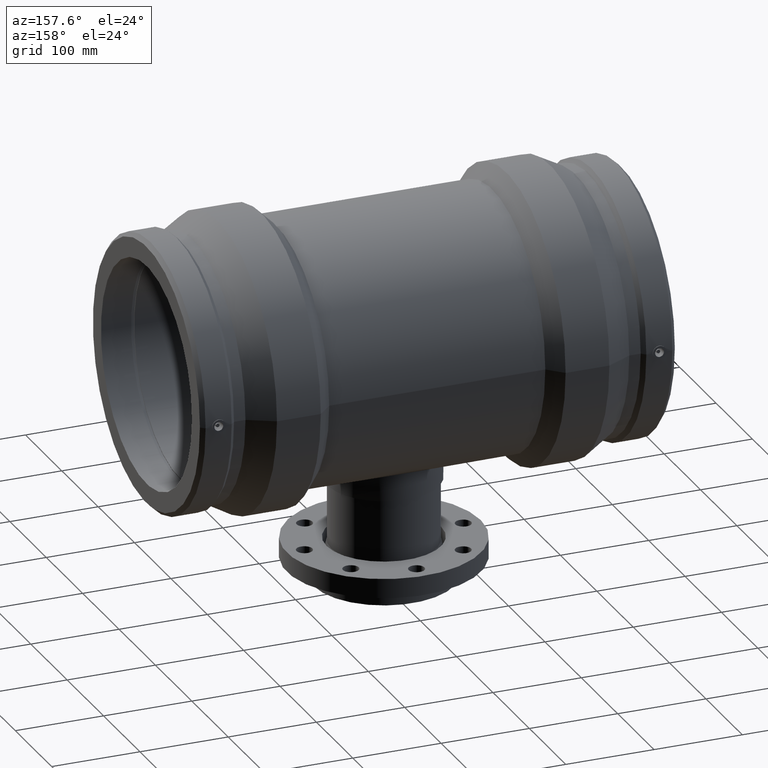
[diagram: clean part render]
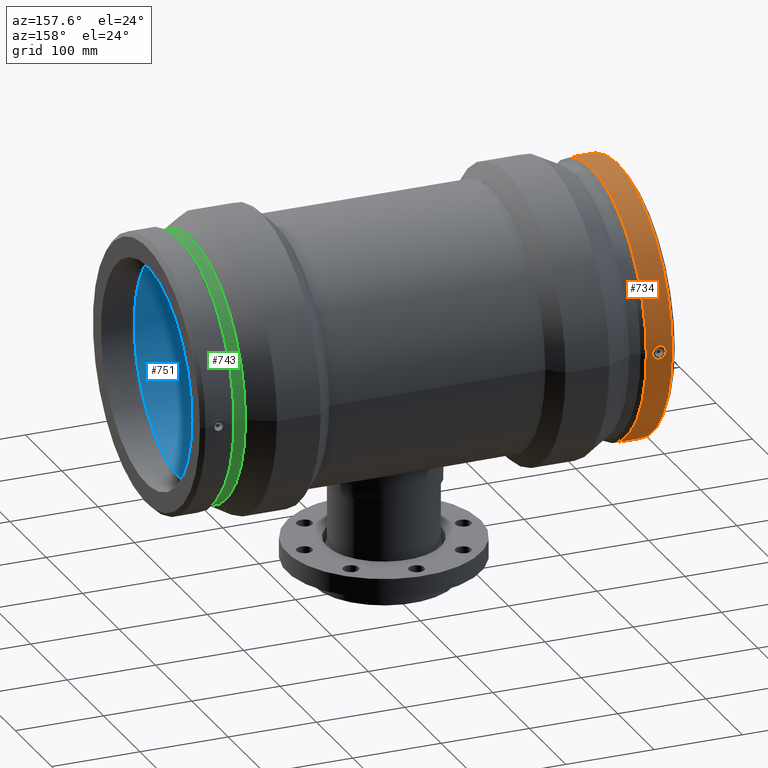
[diagram: same view with three faces highlighted in distinct colors, each labeled with its STEP entity id]
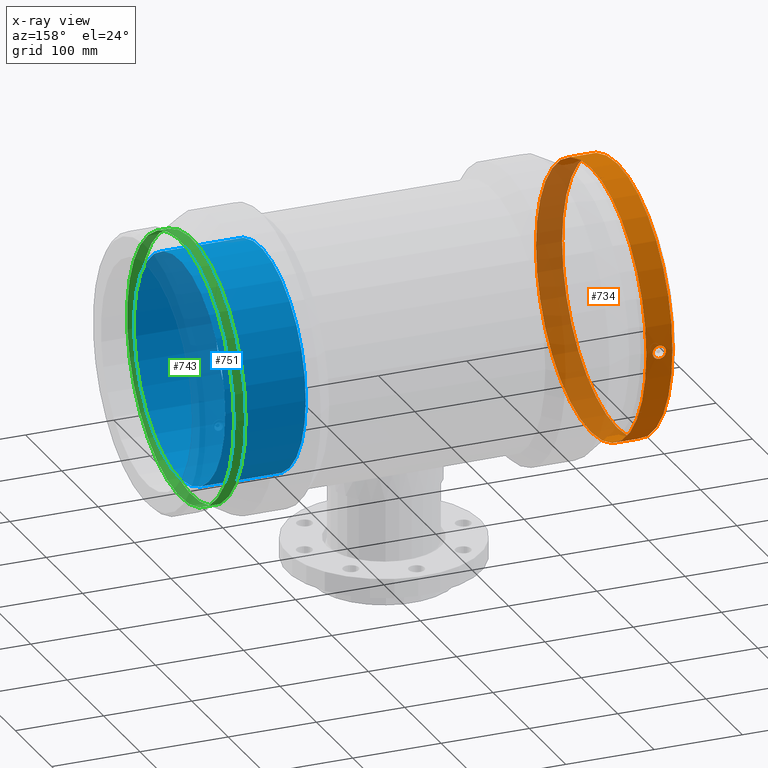
[diagram: x-ray of the same camera — body ghosted, the three highlighted faces saturated]
A machine part, auxiliary view with three faces highlighted in distinct colors.
The next image is the same camera in x-ray (body ghosted, the three faces saturated) — at least one of them is partly hidden behind the body in this view.
Their STEP definitions:

[orange] entity #734 — the highlighted cylindrical surface (bore or boss wall) has radius 151.59 mm, axis along (1, 0, 0).
#93=FACE_BOUND('',#360,.T.);
#94=FACE_BOUND('',#361,.T.);
#161=CIRCLE('',#835,151.59);
#162=CIRCLE('',#837,151.59);
#204=CYLINDRICAL_SURFACE('',#836,151.59);
#250=FACE_OUTER_BOUND('',#359,.T.);
#359=EDGE_LOOP('',(#645));
#360=EDGE_LOOP('',(#646));
#361=EDGE_LOOP('',(#647));
#418=B_SPLINE_CURVE_WITH_KNOTS('',3,(#1613,#1614,#1615,#1616,#1617,#1618,
#1619,#1620,#1621,#1622,#1623,#1624,#1625,#1626,#1627,#1628,#1629,#1630,
#1631,#1632,#1633,#1634,#1635,#1636,#1637,#1638,#1639,#1640,#1641,#1642,
#1643,#1644,#1645,#1646),.UNSPECIFIED.,.T.,.F.,(4,2,2,2,2,2,2,2,2,2,2,2,
2,2,2,2,4),(0.,0.284297818369853,0.568595636739705,0.852751780393523,1.13690792404734,
1.42106406770116,1.70522021135498,1.98951802972483,2.27381584809468,2.55811366646453,
2.84241148483439,3.1265676284882,3.41072377214202,3.69487991579584,3.97903605944966,
4.26333387781951,4.54763169618936),.UNSPECIFIED.);
#461=VERTEX_POINT('',#1612);
#464=VERTEX_POINT('',#1653);
#465=VERTEX_POINT('',#1656);
#531=EDGE_CURVE('',#461,#461,#418,.T.);
#534=EDGE_CURVE('',#464,#464,#161,.T.);
#535=EDGE_CURVE('',#465,#465,#162,.T.);
#645=ORIENTED_EDGE('',*,*,#534,.T.);
#646=ORIENTED_EDGE('',*,*,#531,.T.);
#647=ORIENTED_EDGE('',*,*,#535,.F.);
#734=ADVANCED_FACE('',(#250,#93,#94),#204,.T.);
#835=AXIS2_PLACEMENT_3D('',#1654,#1035,#1036);
#836=AXIS2_PLACEMENT_3D('',#1655,#1037,#1038);
#837=AXIS2_PLACEMENT_3D('',#1657,#1039,#1040);
#1035=DIRECTION('center_axis',(1.,0.,0.));
#1036=DIRECTION('ref_axis',(0.,0.,-1.));
#1037=DIRECTION('center_axis',(1.,0.,0.));
#1038=DIRECTION('ref_axis',(0.,1.,0.));
#1039=DIRECTION('center_axis',(1.,0.,0.));
#1040=DIRECTION('ref_axis',(0.,0.,-1.));
#1612=CARTESIAN_POINT('',(-249.65,151.401751181025,-7.55233998962807));
#1613=CARTESIAN_POINT('Ctrl Pts',(-249.65,151.401751181025,-7.55233998962807));
#1614=CARTESIAN_POINT('Ctrl Pts',(-248.702340605434,151.401751181025,-7.55233998962807));
#1615=CARTESIAN_POINT('Ctrl Pts',(-247.691865220759,151.411607702743,-7.36223938495301));
#1616=CARTESIAN_POINT('Ctrl Pts',(-245.833964152137,151.447184800134,-6.58997204189425));
#1617=CARTESIAN_POINT('Ctrl Pts',(-244.986519894823,151.472390242917,-6.00782634167078));
#1618=CARTESIAN_POINT('Ctrl Pts',(-243.649430129915,151.519657596054,-4.6660364295185));
#1619=CARTESIAN_POINT('Ctrl Pts',(-243.070433565772,151.544788149253,-3.8170616508738));
#1620=CARTESIAN_POINT('Ctrl Pts',(-242.302784798107,151.580211161604,-1.95764118069748));
#1621=CARTESIAN_POINT('Ctrl Pts',(-242.114129647954,151.59,-0.947187145512725));
#1622=CARTESIAN_POINT('Ctrl Pts',(-242.114129647954,151.59,0.947187145512725));
#1623=CARTESIAN_POINT('Ctrl Pts',(-242.302784798107,151.580211161604,1.95764118069747));
#1624=CARTESIAN_POINT('Ctrl Pts',(-243.070433565772,151.544788149253,3.8170616508738));
#1625=CARTESIAN_POINT('Ctrl Pts',(-243.649430129915,151.519657596054,4.6660364295185));
#1626=CARTESIAN_POINT('Ctrl Pts',(-244.986519894823,151.472390242917,6.00782634167078));
#1627=CARTESIAN_POINT('Ctrl Pts',(-245.833964152137,151.447184800134,6.58997204189425));
#1628=CARTESIAN_POINT('Ctrl Pts',(-247.691865220759,151.411607702743,7.36223938495301));
#1629=CARTESIAN_POINT('Ctrl Pts',(-248.702340605434,151.401751181025,7.55233998962807));
#1630=CARTESIAN_POINT('Ctrl Pts',(-250.597659394566,151.401751181025,7.55233998962807));
#1631=CARTESIAN_POINT('Ctrl Pts',(-251.608134779241,151.411607702743,7.36223938495301));
#1632=CARTESIAN_POINT('Ctrl Pts',(-253.466035847863,151.447184800134,6.58997204189425));
#1633=CARTESIAN_POINT('Ctrl Pts',(-254.313480105177,151.472390242917,6.00782634167078));
#1634=CARTESIAN_POINT('Ctrl Pts',(-255.650569870085,151.519657596054,4.6660364295185));
#1635=CARTESIAN_POINT('Ctrl Pts',(-256.229566434228,151.544788149253,3.81706165087379));
#1636=CARTESIAN_POINT('Ctrl Pts',(-256.997215201893,151.580211161604,1.95764118069746));
#1637=CARTESIAN_POINT('Ctrl Pts',(-257.185870352046,151.59,0.947187145512728));
#1638=CARTESIAN_POINT('Ctrl Pts',(-257.185870352046,151.59,-0.947187145512726));
#1639=CARTESIAN_POINT('Ctrl Pts',(-256.997215201893,151.580211161604,-1.95764118069746));
#1640=CARTESIAN_POINT('Ctrl Pts',(-256.229566434228,151.544788149253,-3.81706165087379));
#1641=CARTESIAN_POINT('Ctrl Pts',(-255.650569870085,151.519657596054,-4.6660364295185));
#1642=CARTESIAN_POINT('Ctrl Pts',(-254.313480105177,151.472390242917,-6.00782634167078));
#1643=CARTESIAN_POINT('Ctrl Pts',(-253.466035847863,151.447184800134,-6.58997204189425));
#1644=CARTESIAN_POINT('Ctrl Pts',(-251.608134779241,151.411607702743,-7.36223938495301));
#1645=CARTESIAN_POINT('Ctrl Pts',(-250.597659394566,151.401751181025,-7.55233998962806));
#1646=CARTESIAN_POINT('Ctrl Pts',(-249.65,151.401751181025,-7.55233998962806));
#1653=CARTESIAN_POINT('',(-264.4523,151.59,0.));
#1654=CARTESIAN_POINT('Origin',(-264.4523,0.,0.));
#1655=CARTESIAN_POINT('Origin',(-249.65,0.,0.));
#1656=CARTESIAN_POINT('',(-234.8477,151.59,0.));
#1657=CARTESIAN_POINT('Origin',(-234.8477,0.,0.));

[blue] entity #751 — the highlighted cylindrical surface (bore or boss wall) has radius 125 mm, axis along (1, 0, 0).
#112=FACE_BOUND('',#396,.T.);
#177=CIRCLE('',#868,125.);
#178=CIRCLE('',#870,125.);
#211=CYLINDRICAL_SURFACE('',#869,125.);
#267=FACE_OUTER_BOUND('',#395,.T.);
#395=EDGE_LOOP('',(#681));
#396=EDGE_LOOP('',(#682));
#480=VERTEX_POINT('',#1702);
#481=VERTEX_POINT('',#1705);
#550=EDGE_CURVE('',#480,#480,#177,.T.);
#551=EDGE_CURVE('',#481,#481,#178,.T.);
#681=ORIENTED_EDGE('',*,*,#550,.T.);
#682=ORIENTED_EDGE('',*,*,#551,.F.);
#751=ADVANCED_FACE('',(#267,#112),#211,.F.);
#868=AXIS2_PLACEMENT_3D('',#1703,#1101,#1102);
#869=AXIS2_PLACEMENT_3D('',#1704,#1103,#1104);
#870=AXIS2_PLACEMENT_3D('',#1706,#1105,#1106);
#1101=DIRECTION('center_axis',(1.,0.,0.));
#1102=DIRECTION('ref_axis',(0.,0.,-1.));
#1103=DIRECTION('center_axis',(1.,0.,0.));
#1104=DIRECTION('ref_axis',(0.,1.,0.));
#1105=DIRECTION('center_axis',(1.,0.,0.));
#1106=DIRECTION('ref_axis',(0.,0.,-1.));
#1702=CARTESIAN_POINT('',(231.321779047647,125.,0.));
#1703=CARTESIAN_POINT('Origin',(231.321779047647,0.,0.));
#1704=CARTESIAN_POINT('Origin',(185.660889523823,0.,0.));
#1705=CARTESIAN_POINT('',(140.,125.,0.));
#1706=CARTESIAN_POINT('Origin',(140.,0.,0.));

[green] entity #743 — the highlighted cylindrical surface (bore or boss wall) has radius 147.042 mm, axis along (1, 0, 0).
#103=FACE_BOUND('',#379,.T.);
#169=CIRCLE('',#852,147.0423);
#170=CIRCLE('',#854,147.0423);
#208=CYLINDRICAL_SURFACE('',#853,147.0423);
#259=FACE_OUTER_BOUND('',#378,.T.);
#378=EDGE_LOOP('',(#664));
#379=EDGE_LOOP('',(#665));
#472=VERTEX_POINT('',#1678);
#473=VERTEX_POINT('',#1681);
#542=EDGE_CURVE('',#472,#472,#169,.T.);
#543=EDGE_CURVE('',#473,#473,#170,.T.);
#664=ORIENTED_EDGE('',*,*,#542,.T.);
#665=ORIENTED_EDGE('',*,*,#543,.F.);
#743=ADVANCED_FACE('',(#259,#103),#208,.T.);
#852=AXIS2_PLACEMENT_3D('',#1679,#1069,#1070);
#853=AXIS2_PLACEMENT_3D('',#1680,#1071,#1072);
#854=AXIS2_PLACEMENT_3D('',#1682,#1073,#1074);
#1069=DIRECTION('center_axis',(1.,0.,0.));
#1070=DIRECTION('ref_axis',(0.,0.,-1.));
#1071=DIRECTION('center_axis',(1.,0.,0.));
#1072=DIRECTION('ref_axis',(0.,1.,0.));
#1073=DIRECTION('center_axis',(1.,0.,0.));
#1074=DIRECTION('ref_axis',(0.,0.,-1.));
#1678=CARTESIAN_POINT('',(217.4,147.0423,0.));
#1679=CARTESIAN_POINT('Origin',(217.4,0.,0.));
#1680=CARTESIAN_POINT('Origin',(223.85,0.,0.));
#1681=CARTESIAN_POINT('',(230.3,147.0423,0.));
#1682=CARTESIAN_POINT('Origin',(230.3,0.,0.));